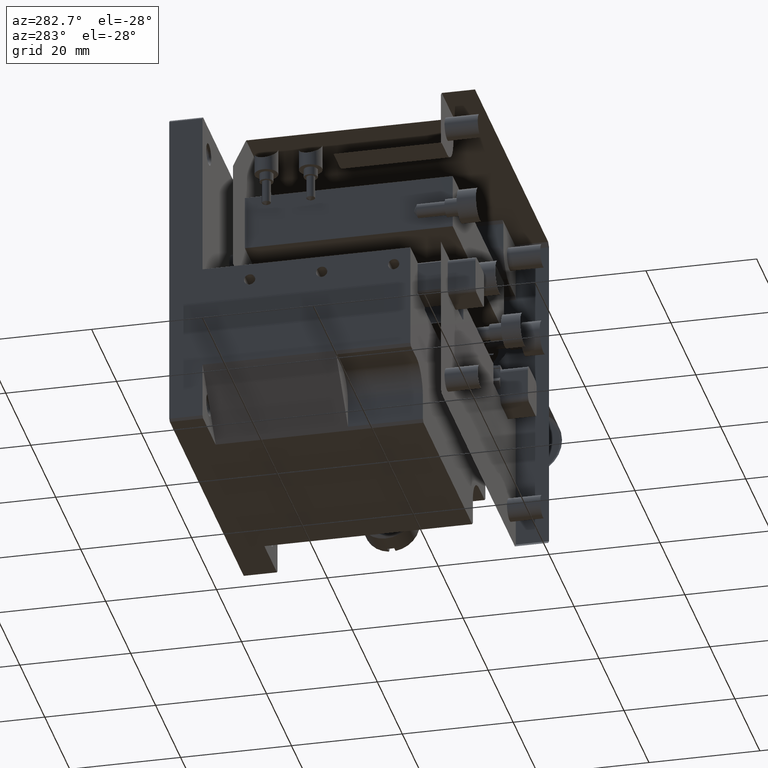
[diagram: clean part render]
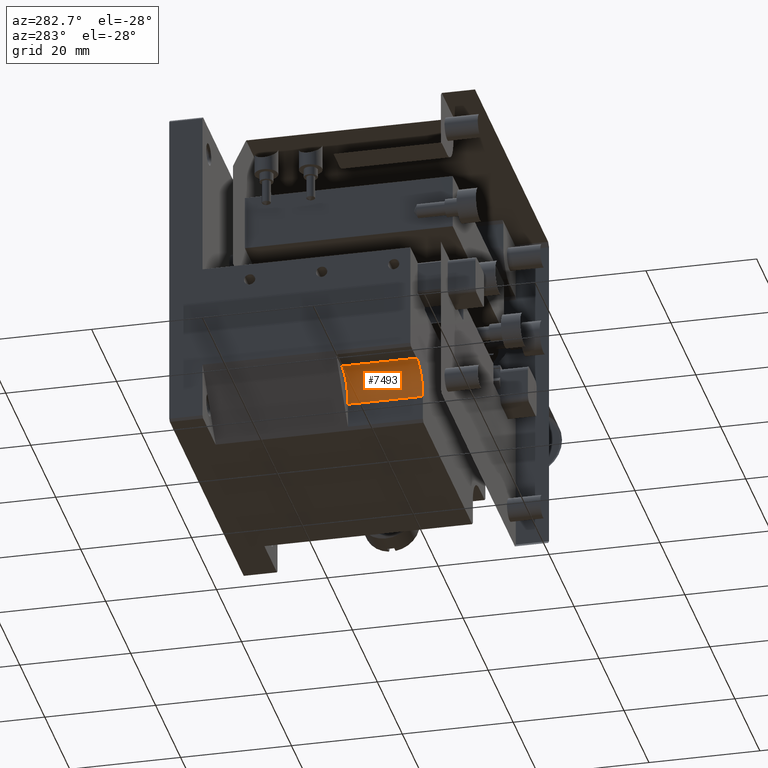
[diagram: same view with one face highlighted and labeled with its STEP entity id]
A machine part, auxiliary view. The second image highlights one B-rep face of the part: STEP entity #7493.
In plain terms, the highlighted cylindrical surface (edge-blend (fillet) strip) has radius 5 mm, axis along (0, 1, 0).
Its self-contained STEP definition (entity closure, byte-faithful):
#642 = CARTESIAN_POINT ( 'NONE',  ( 5.000000000000000000, 11.49999999999999645, -50.00000000000000000 ) ) ;
#646 = VERTEX_POINT ( 'NONE', #3482 ) ;
#1151 = CARTESIAN_POINT ( 'NONE',  ( 5.000000000000000000, 25.00000000000000000, -55.00000000000000000 ) ) ;
#1382 = EDGE_CURVE ( 'NONE', #3087, #1930, #8441, .T. ) ;
#1395 = ORIENTED_EDGE ( 'NONE', *, *, #1382, .F. ) ;
#1479 = DIRECTION ( 'NONE',  ( 0.000000000000000000, 0.000000000000000000, 1.000000000000000000 ) ) ;
#1930 = VERTEX_POINT ( 'NONE', #8292 ) ;
#2480 = VERTEX_POINT ( 'NONE', #3217 ) ;
#2615 = ORIENTED_EDGE ( 'NONE', *, *, #4259, .F. ) ;
#2654 = EDGE_LOOP ( 'NONE', ( #2615, #4421, #1395, #7851 ) ) ;
#2673 = CIRCLE ( 'NONE', #3241, 4.999999999999997335 ) ;
#2810 = AXIS2_PLACEMENT_3D ( 'NONE', #11295, #4099, #7683 ) ;
#3087 = VERTEX_POINT ( 'NONE', #4606 ) ;
#3217 = CARTESIAN_POINT ( 'NONE',  ( 10.00000000000000178, 11.49999999999999645, -55.00000000000000000 ) ) ;
#3241 = AXIS2_PLACEMENT_3D ( 'NONE', #1151, #7254, #6310 ) ;
#3482 = CARTESIAN_POINT ( 'NONE',  ( 10.00000000000000000, 25.00000000000000000, -55.00000000000000000 ) ) ;
#4099 = DIRECTION ( 'NONE',  ( -0.000000000000000000, -1.000000000000000000, -0.000000000000000000 ) ) ;
#4208 = DIRECTION ( 'NONE',  ( -0.000000000000000000, -1.000000000000000000, -0.000000000000000000 ) ) ;
#4259 = EDGE_CURVE ( 'NONE', #2480, #646, #11613, .T. ) ;
#4421 = ORIENTED_EDGE ( 'NONE', *, *, #11376, .T. ) ;
#4606 = CARTESIAN_POINT ( 'NONE',  ( 5.000000000000000000, 25.00000000000000000, -50.00000000000000000 ) ) ;
#6310 = DIRECTION ( 'NONE',  ( 0.000000000000000000, 0.000000000000000000, 1.000000000000000000 ) ) ;
#7120 = CARTESIAN_POINT ( 'NONE',  ( 10.00000000000000000, 11.49999999999999645, -55.00000000000000000 ) ) ;
#7254 = DIRECTION ( 'NONE',  ( 0.000000000000000000, 1.000000000000000000, 0.000000000000000000 ) ) ;
#7360 = VECTOR ( 'NONE', #9840, 1000.000000000000000 ) ;
#7493 = ADVANCED_FACE ( 'NONE', ( #9541 ), #8717, .F. ) ;
#7683 = DIRECTION ( 'NONE',  ( 0.000000000000000000, 0.000000000000000000, 1.000000000000000000 ) ) ;
#7711 = VECTOR ( 'NONE', #4208, 1000.000000000000000 ) ;
#7851 = ORIENTED_EDGE ( 'NONE', *, *, #9393, .T. ) ;
#8292 = CARTESIAN_POINT ( 'NONE',  ( 4.999999999999999112, 11.49999999999999645, -50.00000000000000000 ) ) ;
#8441 = LINE ( 'NONE', #642, #7711 ) ;
#8717 = CYLINDRICAL_SURFACE ( 'NONE', #9204, 4.999999999999997335 ) ;
#9204 = AXIS2_PLACEMENT_3D ( 'NONE', #11151, #10253, #1479 ) ;
#9393 = EDGE_CURVE ( 'NONE', #3087, #646, #2673, .T. ) ;
#9541 = FACE_OUTER_BOUND ( 'NONE', #2654, .T. ) ;
#9564 = CIRCLE ( 'NONE', #2810, 4.999999999999997335 ) ;
#9840 = DIRECTION ( 'NONE',  ( 0.000000000000000000, 1.000000000000000000, -0.000000000000000000 ) ) ;
#10253 = DIRECTION ( 'NONE',  ( 0.000000000000000000, 1.000000000000000000, 0.000000000000000000 ) ) ;
#11151 = CARTESIAN_POINT ( 'NONE',  ( 5.000000000000000000, 11.49999999999999645, -55.00000000000000000 ) ) ;
#11295 = CARTESIAN_POINT ( 'NONE',  ( 5.000000000000000000, 11.49999999999999645, -55.00000000000000000 ) ) ;
#11376 = EDGE_CURVE ( 'NONE', #2480, #1930, #9564, .T. ) ;
#11613 = LINE ( 'NONE', #7120, #7360 ) ;